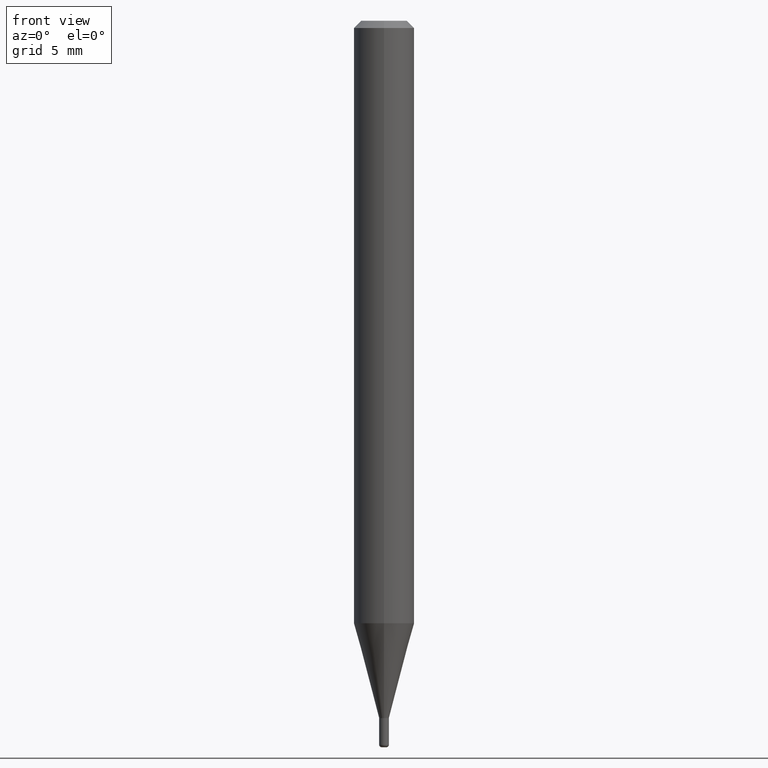
[diagram: clean part render]
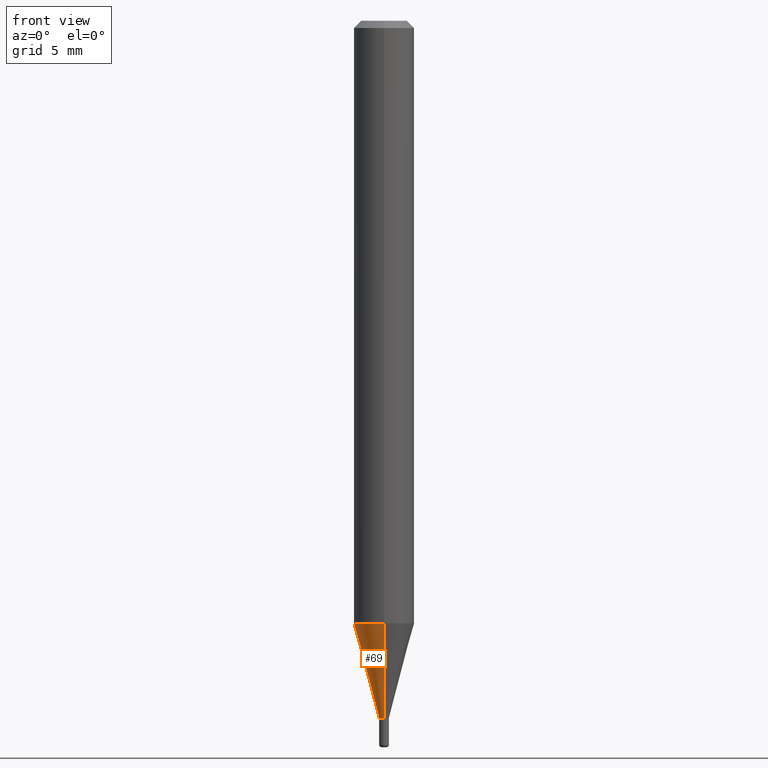
[diagram: same view with one face highlighted and labeled with its STEP entity id]
A machine part, front view. The second image highlights one B-rep face of the part: STEP entity #69.
In plain terms, the highlighted conical surface has half-angle 15 deg.
Its self-contained STEP definition (entity closure, byte-faithful):
#21 = EDGE_CURVE ( 'NONE', #220, #316, #312, .T. ) ;
#22 = CARTESIAN_POINT ( 'NONE',  ( 3.521330396690333980E-29, -5.027940323966735147E-15, -1.440000000000000391 ) ) ;
#37 = CIRCLE ( 'NONE', #355, 0.01000000000000010256 ) ;
#43 = LINE ( 'NONE', #448, #497 ) ;
#61 = ORIENTED_EDGE ( 'NONE', *, *, #21, .F. ) ;
#66 = CARTESIAN_POINT ( 'NONE',  ( 3.521330396690333980E-29, -5.027940323966735147E-15, -1.440000000000000391 ) ) ;
#69 = ADVANCED_FACE ( 'NONE', ( #153 ), #221, .T. ) ;
#84 = CARTESIAN_POINT ( 'NONE',  ( -6.982962677682815691E-17, -0.01000000000000513152, -1.440000000000000391 ) ) ;
#88 = ORIENTED_EDGE ( 'NONE', *, *, #289, .T. ) ;
#110 = ORIENTED_EDGE ( 'NONE', *, *, #447, .F. ) ;
#153 = FACE_OUTER_BOUND ( 'NONE', #375, .T. ) ;
#156 = AXIS2_PLACEMENT_3D ( 'NONE', #22, #191, #229 ) ;
#168 = EDGE_CURVE ( 'NONE', #320, #316, #517, .T. ) ;
#172 = CARTESIAN_POINT ( 'NONE',  ( -4.364351673553612490E-16, -0.06250000000000435763, -1.244067332602634579 ) ) ;
#191 = DIRECTION ( 'NONE',  ( -2.445368331034953437E-29, 3.491625224976898181E-15, 1.000000000000000000 ) ) ;
#203 = CARTESIAN_POINT ( 'NONE',  ( 4.440892098500928887E-16, 0.06249999999999564237, -1.244067332602635023 ) ) ;
#207 = DIRECTION ( 'NONE',  ( 1.839019923739594004E-15, 0.2588190451025240701, 0.9659258262890673130 ) ) ;
#220 = VERTEX_POINT ( 'NONE', #203 ) ;
#221 = CONICAL_SURFACE ( 'NONE', #156, 0.01000000000000010256, 0.2617993877991494078 ) ;
#229 = DIRECTION ( 'NONE',  ( -6.982962677686265922E-15, -1.000000000000000000, 0.000000000000000000 ) ) ;
#234 = DIRECTION ( 'NONE',  ( -1.807323732225323828E-15, -0.2588190451025172978, 0.9659258262890690894 ) ) ;
#269 = DIRECTION ( 'NONE',  ( -2.445368331034953437E-29, 3.491625224976898181E-15, 1.000000000000000000 ) ) ;
#289 = EDGE_CURVE ( 'NONE', #516, #320, #37, .T. ) ;
#312 = CIRCLE ( 'NONE', #379, 0.06250000000000000000 ) ;
#316 = VERTEX_POINT ( 'NONE', #172 ) ;
#320 = VERTEX_POINT ( 'NONE', #84 ) ;
#340 = CARTESIAN_POINT ( 'NONE',  ( 2.575717417130696783E-16, 0.009999999999995073593, -1.440000000000000391 ) ) ;
#352 = CARTESIAN_POINT ( 'NONE',  ( -6.982962677682815691E-17, -0.01000000000000513152, -1.440000000000000391 ) ) ;
#355 = AXIS2_PLACEMENT_3D ( 'NONE', #66, #269, #389 ) ;
#368 = ORIENTED_EDGE ( 'NONE', *, *, #168, .T. ) ;
#375 = EDGE_LOOP ( 'NONE', ( #110, #88, #368, #61 ) ) ;
#379 = AXIS2_PLACEMENT_3D ( 'NONE', #510, #458, #507 ) ;
#389 = DIRECTION ( 'NONE',  ( -6.982962677686265922E-15, -1.000000000000000000, 0.000000000000000000 ) ) ;
#435 = VECTOR ( 'NONE', #234, 39.37007874015748854 ) ;
#447 = EDGE_CURVE ( 'NONE', #516, #220, #43, .T. ) ;
#448 = CARTESIAN_POINT ( 'NONE',  ( 7.105427357604595022E-17, 0.009999999999995073593, -1.440000000000000391 ) ) ;
#458 = DIRECTION ( 'NONE',  ( -2.445368331034953437E-29, 3.491625224976898181E-15, 1.000000000000000000 ) ) ;
#497 = VECTOR ( 'NONE', #207, 39.37007874015748854 ) ;
#507 = DIRECTION ( 'NONE',  ( -6.982962677686265922E-15, -1.000000000000000000, 4.370956789862821150E-15 ) ) ;
#510 = CARTESIAN_POINT ( 'NONE',  ( 3.042202856821611615E-29, -4.343816880085084386E-15, -1.244067332602634801 ) ) ;
#516 = VERTEX_POINT ( 'NONE', #340 ) ;
#517 = LINE ( 'NONE', #352, #435 ) ;